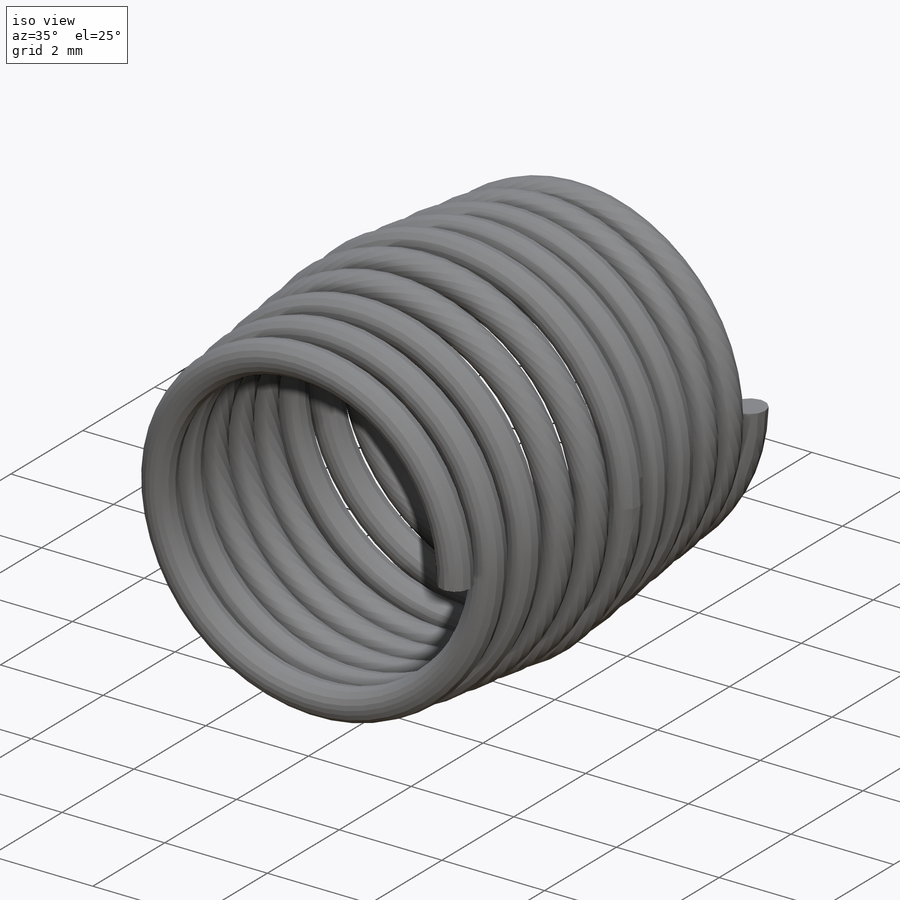
[diagram: iso view]
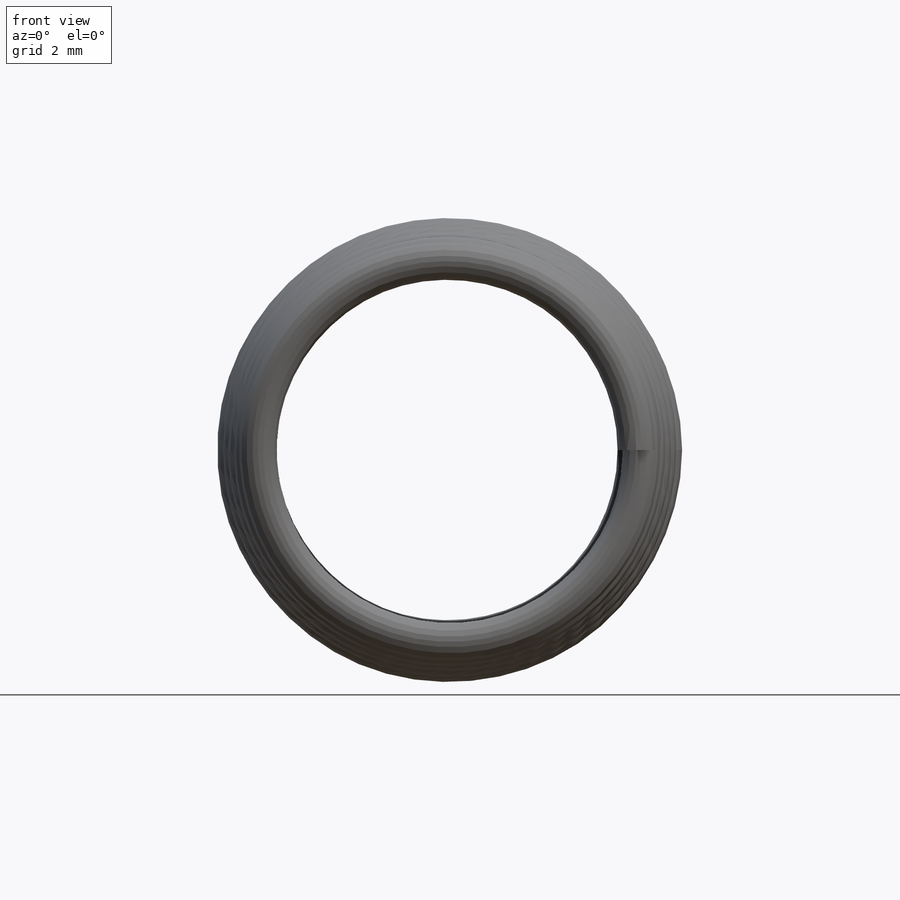
[diagram: front view]
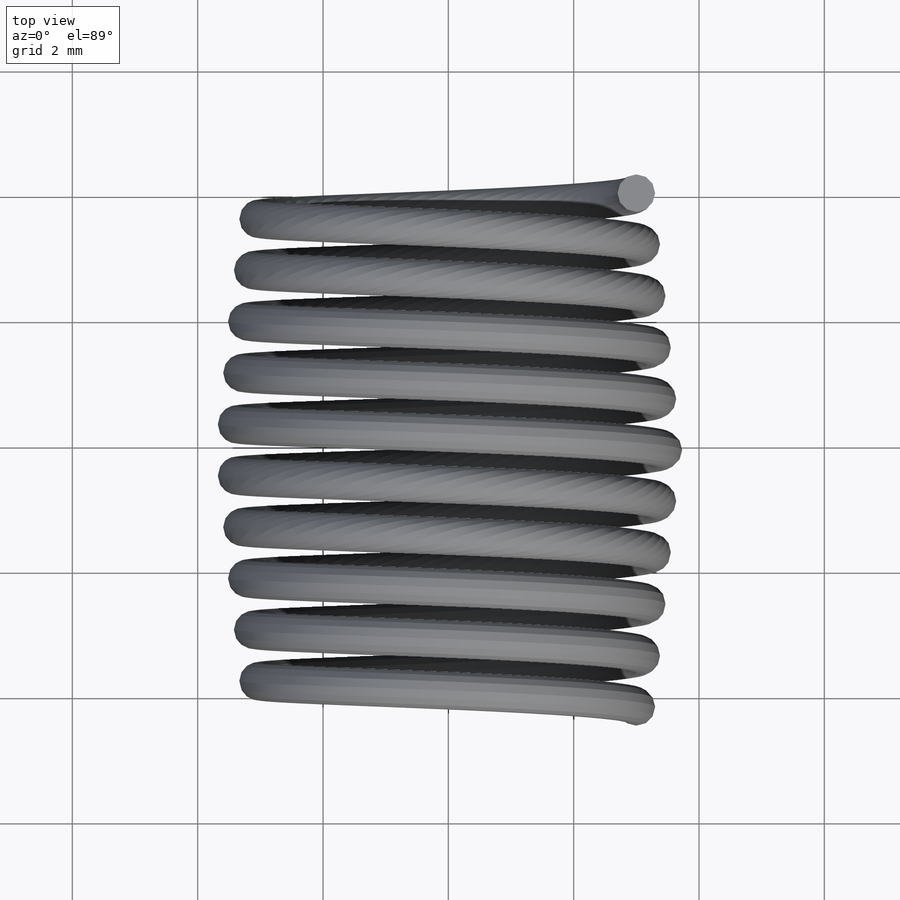
[diagram: top view]
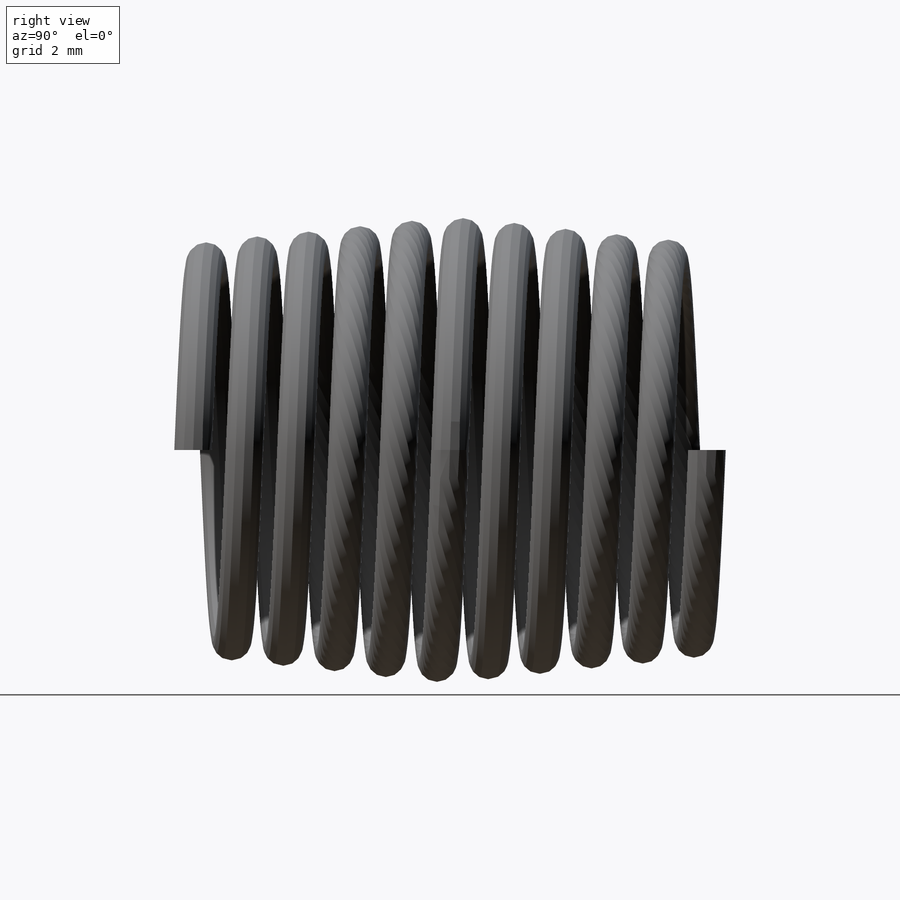
[diagram: right view]
SOLIDWORKS PART (.sldprt)
format: sldprt  version: not decoded by parser v0  size: 427,008 bytes
history: native  units: mm
features: sketch x5, plane x4, sweep x2, material x1, helix x1 (+10 scaffold rows collapsed)
feature tree (23):
  scaffold x10  (default folders/planes/origin — collapsed)
  material  "Matériau <non spécifié>"
  plane  "Face"
  plane  "Dessus"
  plane  "Droite"
  sketch  "Esquisse1"  dims[D1=5.0mm]
  helix  "Hélice/Spirale1"  Pitch=4.1mm
  sketch  "Esquisse2"  dims[D1=0.6mm D2=3.0mm]
  sweep  "Balayage1"
  plane  "Plan1"  Offset=8.2mm
  sketch  "Esquisse3"  dims[D1=5.0mm Hélice/Spirale2=0.0 D3=4.1mm D4=0.82mm D5=5000.0mm D6=6.0deg D7=0.0deg]
  sketch  "Esquisse4"  dims[D2=0.6mm D1=6.0mm D3=13.5mm]
  sweep  "Balayage2"
  sketch  "Esquisse5"
decode coverage: 5 of 8 modeling features carry decoded parameters
note: suppression state not decoded; provenance and decode notes live in map.json
